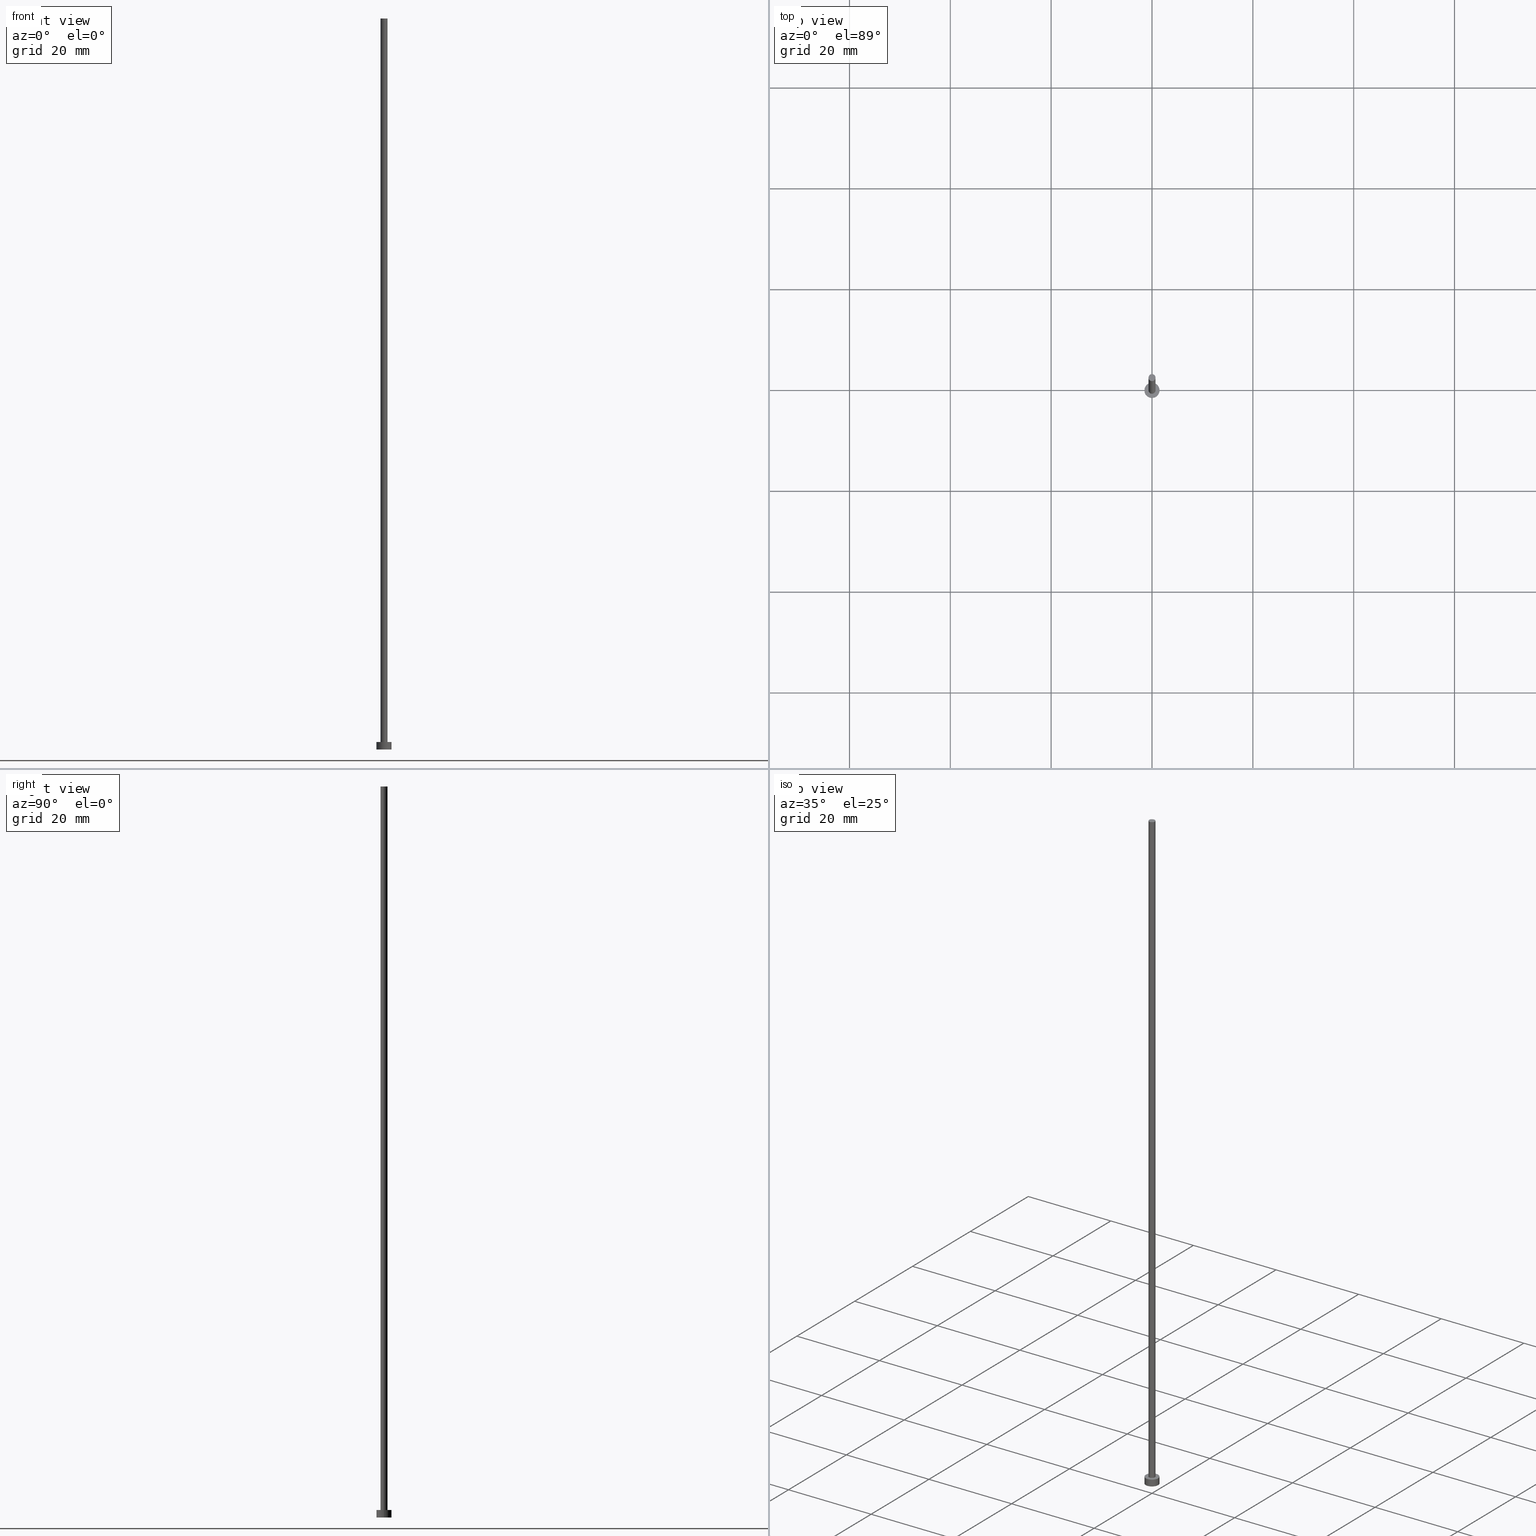
[diagram: canonical four-view strip — front | top / right | iso, engineering-drawing reading convention]
A machine part, canonical four-view strip (front | top / right | iso — engineering-drawing reading convention). The complete STEP part file that produces these views, byte-faithful:
ISO-10303-21;
HEADER;
FILE_DESCRIPTION (( 'STEP AP203' ),
    '1' );
FILE_NAME ('f983.STEP',
    '2023-04-26T06:24:49',
    ( '' ),
    ( '' ),
    'SwSTEP 2.0',
    'SolidWorks 2019',
    '' );
FILE_SCHEMA (( 'CONFIG_CONTROL_DESIGN' ));
ENDSEC;

DATA;
#1 = VERTEX_POINT ( 'NONE', #148 ) ;
#2 = APPROVAL ( #248, 'NEUR�EN�' ) ;
#3 = DIRECTION ( 'NONE',  ( 0.000000000000000000, 0.000000000000000000, 1.000000000000000000 ) ) ;
#4 = AXIS2_PLACEMENT_3D ( 'NONE', #200, #207, #170 ) ;
#5 = CARTESIAN_POINT ( 'NONE',  ( 0.000000000000000000, 0.000000000000000000, 1.500000000000000000 ) ) ;
#6 = PLANE ( 'NONE',  #162 ) ;
#7 = DIRECTION ( 'NONE',  ( -0.000000000000000000, -0.000000000000000000, -1.000000000000000000 ) ) ;
#8 = DIRECTION ( 'NONE',  ( 0.000000000000000000, 0.000000000000000000, 1.000000000000000000 ) ) ;
#9 = DIRECTION ( 'NONE',  ( 0.000000000000000000, 0.000000000000000000, 1.000000000000000000 ) ) ;
#10 = ADVANCED_FACE ( 'NONE', ( #26 ), #6, .F. ) ;
#11 = DIRECTION ( 'NONE',  ( -1.000000000000000000, 0.000000000000000000, 0.000000000000000000 ) ) ;
#12 = LINE ( 'NONE', #134, #98 ) ;
#13 = EDGE_CURVE ( 'NONE', #176, #158, #254, .T. ) ;
#14 = DATE_AND_TIME ( #120, #52 ) ;
#15 = APPROVAL_DATE_TIME ( #198, #24 ) ;
#16 = APPROVAL_PERSON_ORGANIZATION ( #234, #70, #53 ) ;
#17 = CALENDAR_DATE ( 2023, 26, 4 ) ;
#18 = LOCAL_TIME ( 8, 24, 49.00000000000000000, #136 ) ;
#19 = ADVANCED_FACE ( 'NONE', ( #242 ), #128, .T. ) ;
#20 = CARTESIAN_POINT ( 'NONE',  ( 0.000000000000000000, 0.000000000000000000, 145.0000000000000000 ) ) ;
#21 = DIRECTION ( 'NONE',  ( 1.000000000000000000, 0.000000000000000000, -0.000000000000000000 ) ) ;
#22 = APPROVAL_PERSON_ORGANIZATION ( #124, #24, #40 ) ;
#23 = DIRECTION ( 'NONE',  ( 1.000000000000000000, 0.000000000000000000, 0.000000000000000000 ) ) ;
#24 = APPROVAL ( #217, 'NEUR�EN�' ) ;
#25 = CARTESIAN_POINT ( 'NONE',  ( 0.000000000000000000, 0.000000000000000000, 145.0000000000000000 ) ) ;
#26 = FACE_OUTER_BOUND ( 'NONE', #238, .T. ) ;
#27 = AXIS2_PLACEMENT_3D ( 'NONE', #241, #64, #45 ) ;
#28 = PERSON_AND_ORGANIZATION_ROLE ( 'design_owner' ) ;
#29 = CARTESIAN_POINT ( 'NONE',  ( 0.000000000000000000, 0.000000000000000000, 0.000000000000000000 ) ) ;
#30 = AXIS2_PLACEMENT_3D ( 'NONE', #183, #164, #23 ) ;
#31 = AXIS2_PLACEMENT_3D ( 'NONE', #231, #211, #11 ) ;
#32 = DIRECTION ( 'NONE',  ( 0.000000000000000000, 0.000000000000000000, 1.000000000000000000 ) ) ;
#33 = EDGE_CURVE ( 'NONE', #146, #59, #50, .T. ) ;
#34 = APPLICATION_PROTOCOL_DEFINITION ( 'international standard', 'config_control_design', 1994, #95 ) ;
#35 = PERSON ( 'NEUR�EN�', 'NEUR�EN�', 'NEUR�EN�', ('NEUR�EN�'), ('NEUR�EN�'), ('NEUR�EN�') ) ;
#36 = ORIENTED_EDGE ( 'NONE', *, *, #38, .F. ) ;
#37 = AXIS2_PLACEMENT_3D ( 'NONE', #5, #149, #131 ) ;
#38 = EDGE_CURVE ( 'NONE', #158, #176, #72, .T. ) ;
#39 = ORIENTED_EDGE ( 'NONE', *, *, #33, .T. ) ;
#40 = APPROVAL_ROLE ( '' ) ;
#41 = PERSON_AND_ORGANIZATION_ROLE ( 'design_supplier' ) ;
#42 = ORIENTED_EDGE ( 'NONE', *, *, #237, .T. ) ;
#43 = CC_DESIGN_PERSON_AND_ORGANIZATION_ASSIGNMENT ( #102, #174, ( #240 ) ) ;
#44 = DIRECTION ( 'NONE',  ( -0.000000000000000000, -0.000000000000000000, -1.000000000000000000 ) ) ;
#45 = DIRECTION ( 'NONE',  ( 1.000000000000000000, 0.000000000000000000, 0.000000000000000000 ) ) ;
#46 = LINE ( 'NONE', #184, #103 ) ;
#47 = ORIENTED_EDGE ( 'NONE', *, *, #161, .T. ) ;
#48 = DIRECTION ( 'NONE',  ( -1.000000000000000000, 0.000000000000000000, 0.000000000000000000 ) ) ;
#49 = APPROVAL_STATUS ( 'not_yet_approved' ) ;
#50 = CIRCLE ( 'NONE', #125, 1.500000000000000222 ) ;
#51 = CC_DESIGN_DATE_AND_TIME_ASSIGNMENT ( #157, #229, ( #240 ) ) ;
#52 = LOCAL_TIME ( 8, 24, 49.00000000000000000, #101 ) ;
#53 = APPROVAL_ROLE ( '' ) ;
#54 = PRODUCT ( 'f983', 'f983', '', ( #210 ) ) ;
#55 = LINE ( 'NONE', #73, #175 ) ;
#56 = ORIENTED_EDGE ( 'NONE', *, *, #33, .F. ) ;
#57 = CC_DESIGN_PERSON_AND_ORGANIZATION_ASSIGNMENT ( #173, #28, ( #54 ) ) ;
#58 = CIRCLE ( 'NONE', #104, 1.500000000000000222 ) ;
#59 = VERTEX_POINT ( 'NONE', #96 ) ;
#60 = LOCAL_TIME ( 8, 24, 49.00000000000000000, #123 ) ;
#61 = PERSON_AND_ORGANIZATION ( #35, #135 ) ;
#62 = ORIENTED_EDGE ( 'NONE', *, *, #161, .F. ) ;
#63 = DESIGN_CONTEXT ( 'detailed design', #155, 'design' ) ;
#64 = DIRECTION ( 'NONE',  ( 0.000000000000000000, 0.000000000000000000, 1.000000000000000000 ) ) ;
#65 = CARTESIAN_POINT ( 'NONE',  ( 0.000000000000000000, 0.000000000000000000, 1.500000000000000000 ) ) ;
#66 = CC_DESIGN_PERSON_AND_ORGANIZATION_ASSIGNMENT ( #61, #214, ( #230 ) ) ;
#67 = DIRECTION ( 'NONE',  ( -0.000000000000000000, -0.000000000000000000, -1.000000000000000000 ) ) ;
#68 = CARTESIAN_POINT ( 'NONE',  ( 0.6999999999999999556, 8.572527594031471957E-17, 1.500000000000000000 ) ) ;
#69 = FACE_OUTER_BOUND ( 'NONE', #255, .T. ) ;
#70 = APPROVAL ( #49, 'NEUR�EN�' ) ;
#71 = DIRECTION ( 'NONE',  ( 1.000000000000000000, 0.000000000000000000, 0.000000000000000000 ) ) ;
#72 = CIRCLE ( 'NONE', #27, 0.6999999999999999556 ) ;
#73 = CARTESIAN_POINT ( 'NONE',  ( 0.6999999999999999556, 8.572527594031471957E-17, 145.0000000000000000 ) ) ;
#74 = APPROVAL_DATE_TIME ( #14, #2 ) ;
#75 = CALENDAR_DATE ( 2023, 26, 4 ) ;
#76 = AXIS2_PLACEMENT_3D ( 'NONE', #25, #44, #48 ) ;
#77 = CARTESIAN_POINT ( 'NONE',  ( 1.500000000000000222, 1.836970198721030181E-16, 0.000000000000000000 ) ) ;
#78 = SECURITY_CLASSIFICATION ( '', '', #79 ) ;
#79 = SECURITY_CLASSIFICATION_LEVEL ( 'unclassified' ) ;
#80 = EDGE_LOOP ( 'NONE', ( #106, #160 ) ) ;
#81 = PRODUCT_RELATED_PRODUCT_CATEGORY ( 'detail', '', ( #54 ) ) ;
#82 = ORIENTED_EDGE ( 'NONE', *, *, #129, .F. ) ;
#83 = CC_DESIGN_APPROVAL ( #70, ( #230 ) ) ;
#84 = PRODUCT_DEFINITION_SHAPE ( 'NONE', 'NONE',  #240 ) ;
#85 = ORIENTED_EDGE ( 'NONE', *, *, #119, .T. ) ;
#86 = VERTEX_POINT ( 'NONE', #87 ) ;
#87 = CARTESIAN_POINT ( 'NONE',  ( 0.6999999999999999556, 8.572527594031471957E-17, 145.0000000000000000 ) ) ;
#88 = LOCAL_TIME ( 8, 24, 49.00000000000000000, #249 ) ;
#89 = CYLINDRICAL_SURFACE ( 'NONE', #76, 0.6999999999999999556 ) ;
#90 = EDGE_CURVE ( 'NONE', #146, #227, #204, .T. ) ;
#91 = DIRECTION ( 'NONE',  ( 0.000000000000000000, 0.000000000000000000, 1.000000000000000000 ) ) ;
#93 = CARTESIAN_POINT ( 'NONE',  ( 0.000000000000000000, 0.000000000000000000, 1.500000000000000000 ) ) ;
#92 = AXIS2_PLACEMENT_3D ( 'NONE', #20, #203, #147 ) ;
#94 = CC_DESIGN_DATE_AND_TIME_ASSIGNMENT ( #142, #194, ( #78 ) ) ;
#95 = APPLICATION_CONTEXT ( 'configuration controlled 3d designs of mechanical parts and assemblies' ) ;
#96 = CARTESIAN_POINT ( 'NONE',  ( -1.500000000000000222, 0.000000000000000000, 1.500000000000000000 ) ) ;
#97 = DIRECTION ( 'NONE',  ( -0.000000000000000000, -0.000000000000000000, -1.000000000000000000 ) ) ;
#98 = VECTOR ( 'NONE', #138, 1000.000000000000000 ) ;
#99 = PERSON_AND_ORGANIZATION ( #35, #135 ) ;
#100 = ADVANCED_BREP_SHAPE_REPRESENTATION ( 'f983', ( #165, #191 ), #109 ) ;
#101 = COORDINATED_UNIVERSAL_TIME_OFFSET ( 1, 0, .AHEAD. ) ;
#102 = PERSON_AND_ORGANIZATION ( #35, #135 ) ;
#103 = VECTOR ( 'NONE', #7, 1000.000000000000000 ) ;
#104 = AXIS2_PLACEMENT_3D ( 'NONE', #110, #225, #239 ) ;
#105 = EDGE_LOOP ( 'NONE', ( #82, #42, #197, #107 ) ) ;
#106 = ORIENTED_EDGE ( 'NONE', *, *, #224, .T. ) ;
#107 = ORIENTED_EDGE ( 'NONE', *, *, #232, .F. ) ;
#108 = CC_DESIGN_PERSON_AND_ORGANIZATION_ASSIGNMENT ( #139, #41, ( #230 ) ) ;
#109 =( GEOMETRIC_REPRESENTATION_CONTEXT ( 3 ) GLOBAL_UNCERTAINTY_ASSIGNED_CONTEXT ( ( #140 ) ) GLOBAL_UNIT_ASSIGNED_CONTEXT ( ( #172, #212, #153 ) ) REPRESENTATION_CONTEXT ( 'NONE', 'WORKASPACE' ) );
#110 = CARTESIAN_POINT ( 'NONE',  ( 0.000000000000000000, 0.000000000000000000, 0.000000000000000000 ) ) ;
#111 = CARTESIAN_POINT ( 'NONE',  ( 1.500000000000000222, 1.836970198721030181E-16, 1.500000000000000000 ) ) ;
#112 = DIRECTION ( 'NONE',  ( 1.000000000000000000, 0.000000000000000000, 0.000000000000000000 ) ) ;
#113 = FACE_BOUND ( 'NONE', #178, .T. ) ;
#114 = EDGE_CURVE ( 'NONE', #59, #222, #46, .T. ) ;
#115 = CARTESIAN_POINT ( 'NONE',  ( 0.000000000000000000, 0.000000000000000000, 1.500000000000000000 ) ) ;
#116 = CIRCLE ( 'NONE', #251, 0.6999999999999999556 ) ;
#117 = APPLICATION_PROTOCOL_DEFINITION ( 'international standard', 'config_control_design', 1994, #155 ) ;
#118 = DATE_AND_TIME ( #208, #18 ) ;
#119 = EDGE_CURVE ( 'NONE', #227, #222, #190, .T. ) ;
#120 = CALENDAR_DATE ( 2023, 26, 4 ) ;
#121 = ORIENTED_EDGE ( 'NONE', *, *, #192, .T. ) ;
#122 = CIRCLE ( 'NONE', #37, 1.500000000000000222 ) ;
#123 = COORDINATED_UNIVERSAL_TIME_OFFSET ( 1, 0, .AHEAD. ) ;
#124 = PERSON_AND_ORGANIZATION ( #35, #135 ) ;
#125 = AXIS2_PLACEMENT_3D ( 'NONE', #93, #226, #202 ) ;
#126 = SHAPE_DEFINITION_REPRESENTATION ( #84, #100 ) ;
#127 = ORIENTED_EDGE ( 'NONE', *, *, #38, .T. ) ;
#128 = PLANE ( 'NONE',  #247 ) ;
#129 = EDGE_CURVE ( 'NONE', #86, #1, #171, .T. ) ;
#130 = PLANE ( 'NONE',  #4 ) ;
#131 = DIRECTION ( 'NONE',  ( 1.000000000000000000, 0.000000000000000000, 0.000000000000000000 ) ) ;
#132 = DIRECTION ( 'NONE',  ( 1.000000000000000000, 0.000000000000000000, -0.000000000000000000 ) ) ;
#133 = CYLINDRICAL_SURFACE ( 'NONE', #235, 1.500000000000000222 ) ;
#134 = CARTESIAN_POINT ( 'NONE',  ( -0.6999999999999999556, 0.000000000000000000, 145.0000000000000000 ) ) ;
#135 = ORGANIZATION ( 'NEUR�EN�', 'NEUR�EN�', '' ) ;
#136 = COORDINATED_UNIVERSAL_TIME_OFFSET ( 1, 0, .AHEAD. ) ;
#137 = ADVANCED_FACE ( 'NONE', ( #151 ), #133, .T. ) ;
#138 = DIRECTION ( 'NONE',  ( -0.000000000000000000, -0.000000000000000000, -1.000000000000000000 ) ) ;
#139 = PERSON_AND_ORGANIZATION ( #35, #135 ) ;
#140 = UNCERTAINTY_MEASURE_WITH_UNIT (LENGTH_MEASURE( 1.000000000000000082E-05 ), #172, 'distance_accuracy_value', 'NONE');
#141 = EDGE_LOOP ( 'NONE', ( #56, #215, #85, #253 ) ) ;
#142 = DATE_AND_TIME ( #144, #60 ) ;
#143 = EDGE_LOOP ( 'NONE', ( #47, #39 ) ) ;
#144 = CALENDAR_DATE ( 2023, 26, 4 ) ;
#145 = ORIENTED_EDGE ( 'NONE', *, *, #90, .F. ) ;
#146 = VERTEX_POINT ( 'NONE', #244 ) ;
#147 = DIRECTION ( 'NONE',  ( -1.000000000000000000, 0.000000000000000000, 0.000000000000000000 ) ) ;
#148 = CARTESIAN_POINT ( 'NONE',  ( -0.6999999999999999556, 0.000000000000000000, 145.0000000000000000 ) ) ;
#149 = DIRECTION ( 'NONE',  ( 0.000000000000000000, 0.000000000000000000, 1.000000000000000000 ) ) ;
#150 = CARTESIAN_POINT ( 'NONE',  ( -0.6999999999999999556, 0.000000000000000000, 1.500000000000000000 ) ) ;
#151 = FACE_OUTER_BOUND ( 'NONE', #177, .T. ) ;
#152 = AXIS2_PLACEMENT_3D ( 'NONE', #115, #91, #112 ) ;
#153 =( NAMED_UNIT ( * ) SI_UNIT ( $, .STERADIAN. ) SOLID_ANGLE_UNIT ( ) );
#154 = CC_DESIGN_APPROVAL ( #24, ( #78 ) ) ;
#155 = APPLICATION_CONTEXT ( 'configuration controlled 3d designs of mechanical parts and assemblies' ) ;
#156 = ADVANCED_FACE ( 'NONE', ( #182 ), #199, .T. ) ;
#157 = DATE_AND_TIME ( #75, #88 ) ;
#158 = VERTEX_POINT ( 'NONE', #150 ) ;
#159 = LOCAL_TIME ( 8, 24, 49.00000000000000000, #195 ) ;
#160 = ORIENTED_EDGE ( 'NONE', *, *, #129, .T. ) ;
#161 = EDGE_CURVE ( 'NONE', #59, #146, #122, .T. ) ;
#162 = AXIS2_PLACEMENT_3D ( 'NONE', #185, #166, #132 ) ;
#163 = APPROVAL_PERSON_ORGANIZATION ( #99, #2, #246 ) ;
#164 = DIRECTION ( 'NONE',  ( 0.000000000000000000, 0.000000000000000000, 1.000000000000000000 ) ) ;
#165 = MANIFOLD_SOLID_BREP ( 'P�idat vysunut�m3', #196 ) ;
#166 = DIRECTION ( 'NONE',  ( 0.000000000000000000, 0.000000000000000000, 1.000000000000000000 ) ) ;
#167 = DIRECTION ( 'NONE',  ( -0.000000000000000000, -0.000000000000000000, -1.000000000000000000 ) ) ;
#168 = DIRECTION ( 'NONE',  ( 1.000000000000000000, 0.000000000000000000, 0.000000000000000000 ) ) ;
#169 = DIRECTION ( 'NONE',  ( -1.000000000000000000, 0.000000000000000000, 0.000000000000000000 ) ) ;
#170 = DIRECTION ( 'NONE',  ( 1.000000000000000000, 0.000000000000000000, -0.000000000000000000 ) ) ;
#171 = CIRCLE ( 'NONE', #201, 0.6999999999999999556 ) ;
#172 =( LENGTH_UNIT ( ) NAMED_UNIT ( * ) SI_UNIT ( .MILLI., .METRE. ) );
#173 = PERSON_AND_ORGANIZATION ( #35, #135 ) ;
#174 = PERSON_AND_ORGANIZATION_ROLE ( 'creator' ) ;
#175 = VECTOR ( 'NONE', #97, 1000.000000000000000 ) ;
#176 = VERTEX_POINT ( 'NONE', #68 ) ;
#177 = EDGE_LOOP ( 'NONE', ( #145, #62, #221, #121 ) ) ;
#178 = EDGE_LOOP ( 'NONE', ( #36, #220 ) ) ;
#179 = ORIENTED_EDGE ( 'NONE', *, *, #237, .F. ) ;
#180 = ADVANCED_FACE ( 'NONE', ( #69 ), #89, .T. ) ;
#181 = APPROVAL_DATE_TIME ( #118, #70 ) ;
#182 = FACE_OUTER_BOUND ( 'NONE', #105, .T. ) ;
#183 = CARTESIAN_POINT ( 'NONE',  ( 0.000000000000000000, 0.000000000000000000, 0.000000000000000000 ) ) ;
#184 = CARTESIAN_POINT ( 'NONE',  ( -1.500000000000000222, 0.000000000000000000, 1.500000000000000000 ) ) ;
#185 = CARTESIAN_POINT ( 'NONE',  ( 0.000000000000000000, 0.000000000000000000, 0.000000000000000000 ) ) ;
#186 = CARTESIAN_POINT ( 'NONE',  ( 0.000000000000000000, 0.000000000000000000, 145.0000000000000000 ) ) ;
#187 = CARTESIAN_POINT ( 'NONE',  ( -1.500000000000000222, 0.000000000000000000, 0.000000000000000000 ) ) ;
#188 = FACE_OUTER_BOUND ( 'NONE', #141, .T. ) ;
#189 = PERSON_AND_ORGANIZATION ( #35, #135 ) ;
#190 = CIRCLE ( 'NONE', #30, 1.500000000000000222 ) ;
#191 = AXIS2_PLACEMENT_3D ( 'NONE', #29, #32, #71 ) ;
#192 = EDGE_CURVE ( 'NONE', #222, #227, #58, .T. ) ;
#193 = ORIENTED_EDGE ( 'NONE', *, *, #192, .F. ) ;
#194 = DATE_TIME_ROLE ( 'classification_date' ) ;
#195 = COORDINATED_UNIVERSAL_TIME_OFFSET ( 1, 0, .AHEAD. ) ;
#197 = ORIENTED_EDGE ( 'NONE', *, *, #13, .T. ) ;
#196 = CLOSED_SHELL ( 'NONE', ( #156, #213, #137, #205, #10, #180, #19 ) ) ;
#198 = DATE_AND_TIME ( #17, #159 ) ;
#199 = CYLINDRICAL_SURFACE ( 'NONE', #92, 0.6999999999999999556 ) ;
#200 = CARTESIAN_POINT ( 'NONE',  ( 0.000000000000000000, 0.000000000000000000, 1.500000000000000000 ) ) ;
#201 = AXIS2_PLACEMENT_3D ( 'NONE', #186, #8, #168 ) ;
#202 = DIRECTION ( 'NONE',  ( 1.000000000000000000, 0.000000000000000000, 0.000000000000000000 ) ) ;
#203 = DIRECTION ( 'NONE',  ( -0.000000000000000000, -0.000000000000000000, -1.000000000000000000 ) ) ;
#204 = LINE ( 'NONE', #111, #206 ) ;
#205 = ADVANCED_FACE ( 'NONE', ( #113, #223 ), #130, .T. ) ;
#206 = VECTOR ( 'NONE', #167, 1000.000000000000000 ) ;
#207 = DIRECTION ( 'NONE',  ( 0.000000000000000000, 0.000000000000000000, 1.000000000000000000 ) ) ;
#208 = CALENDAR_DATE ( 2023, 26, 4 ) ;
#209 = CC_DESIGN_PERSON_AND_ORGANIZATION_ASSIGNMENT ( #189, #219, ( #78 ) ) ;
#210 = MECHANICAL_CONTEXT ( 'NONE', #95, 'mechanical' ) ;
#211 = DIRECTION ( 'NONE',  ( -0.000000000000000000, -0.000000000000000000, -1.000000000000000000 ) ) ;
#212 =( NAMED_UNIT ( * ) PLANE_ANGLE_UNIT ( ) SI_UNIT ( $, .RADIAN. ) );
#213 = ADVANCED_FACE ( 'NONE', ( #188 ), #228, .T. ) ;
#214 = PERSON_AND_ORGANIZATION_ROLE ( 'creator' ) ;
#215 = ORIENTED_EDGE ( 'NONE', *, *, #90, .T. ) ;
#216 = CC_DESIGN_SECURITY_CLASSIFICATION ( #78, ( #230 ) ) ;
#217 = APPROVAL_STATUS ( 'not_yet_approved' ) ;
#218 = ORIENTED_EDGE ( 'NONE', *, *, #119, .F. ) ;
#219 = PERSON_AND_ORGANIZATION_ROLE ( 'classification_officer' ) ;
#220 = ORIENTED_EDGE ( 'NONE', *, *, #13, .F. ) ;
#221 = ORIENTED_EDGE ( 'NONE', *, *, #114, .T. ) ;
#222 = VERTEX_POINT ( 'NONE', #187 ) ;
#223 = FACE_OUTER_BOUND ( 'NONE', #143, .T. ) ;
#224 = EDGE_CURVE ( 'NONE', #1, #86, #116, .T. ) ;
#225 = DIRECTION ( 'NONE',  ( 0.000000000000000000, 0.000000000000000000, 1.000000000000000000 ) ) ;
#226 = DIRECTION ( 'NONE',  ( 0.000000000000000000, 0.000000000000000000, 1.000000000000000000 ) ) ;
#227 = VERTEX_POINT ( 'NONE', #77 ) ;
#228 = CYLINDRICAL_SURFACE ( 'NONE', #31, 1.500000000000000222 ) ;
#229 = DATE_TIME_ROLE ( 'creation_date' ) ;
#230 = PRODUCT_DEFINITION_FORMATION_WITH_SPECIFIED_SOURCE ( 'LIBOVOLN�', '', #54, .NOT_KNOWN. ) ;
#231 = CARTESIAN_POINT ( 'NONE',  ( 0.000000000000000000, 0.000000000000000000, 1.500000000000000000 ) ) ;
#232 = EDGE_CURVE ( 'NONE', #1, #158, #12, .T. ) ;
#233 = CARTESIAN_POINT ( 'NONE',  ( 0.000000000000000000, 0.000000000000000000, 145.0000000000000000 ) ) ;
#234 = PERSON_AND_ORGANIZATION ( #35, #135 ) ;
#235 = AXIS2_PLACEMENT_3D ( 'NONE', #65, #67, #169 ) ;
#236 = ORIENTED_EDGE ( 'NONE', *, *, #232, .T. ) ;
#237 = EDGE_CURVE ( 'NONE', #86, #176, #55, .T. ) ;
#238 = EDGE_LOOP ( 'NONE', ( #193, #218 ) ) ;
#239 = DIRECTION ( 'NONE',  ( 1.000000000000000000, 0.000000000000000000, 0.000000000000000000 ) ) ;
#240 = PRODUCT_DEFINITION ( 'NEZN�M�', '', #230, #63 ) ;
#241 = CARTESIAN_POINT ( 'NONE',  ( 0.000000000000000000, 0.000000000000000000, 1.500000000000000000 ) ) ;
#242 = FACE_OUTER_BOUND ( 'NONE', #80, .T. ) ;
#243 = CC_DESIGN_APPROVAL ( #2, ( #240 ) ) ;
#244 = CARTESIAN_POINT ( 'NONE',  ( 1.500000000000000222, 1.836970198721030181E-16, 1.500000000000000000 ) ) ;
#245 = CARTESIAN_POINT ( 'NONE',  ( 0.000000000000000000, 0.000000000000000000, 145.0000000000000000 ) ) ;
#246 = APPROVAL_ROLE ( '' ) ;
#247 = AXIS2_PLACEMENT_3D ( 'NONE', #245, #3, #21 ) ;
#248 = APPROVAL_STATUS ( 'not_yet_approved' ) ;
#249 = COORDINATED_UNIVERSAL_TIME_OFFSET ( 1, 0, .AHEAD. ) ;
#250 = DIRECTION ( 'NONE',  ( 1.000000000000000000, 0.000000000000000000, 0.000000000000000000 ) ) ;
#251 = AXIS2_PLACEMENT_3D ( 'NONE', #233, #9, #250 ) ;
#252 = ORIENTED_EDGE ( 'NONE', *, *, #224, .F. ) ;
#253 = ORIENTED_EDGE ( 'NONE', *, *, #114, .F. ) ;
#254 = CIRCLE ( 'NONE', #152, 0.6999999999999999556 ) ;
#255 = EDGE_LOOP ( 'NONE', ( #179, #252, #236, #127 ) ) ;
ENDSEC;
END-ISO-10303-21;
